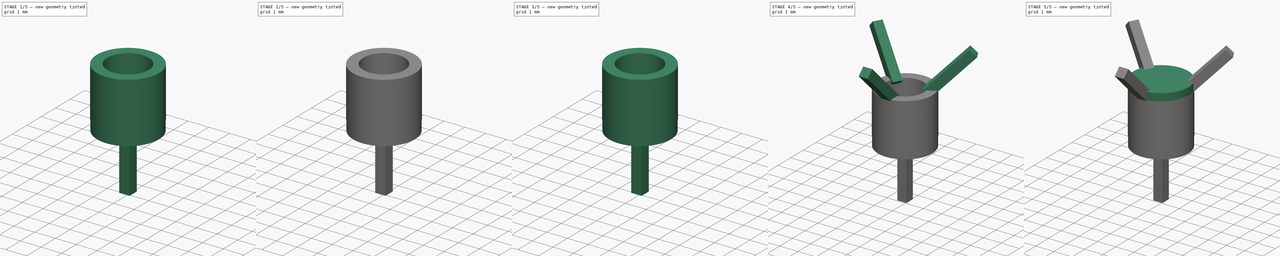
[diagram: build sequence overview — one tinted view per stage of 5, left to right]
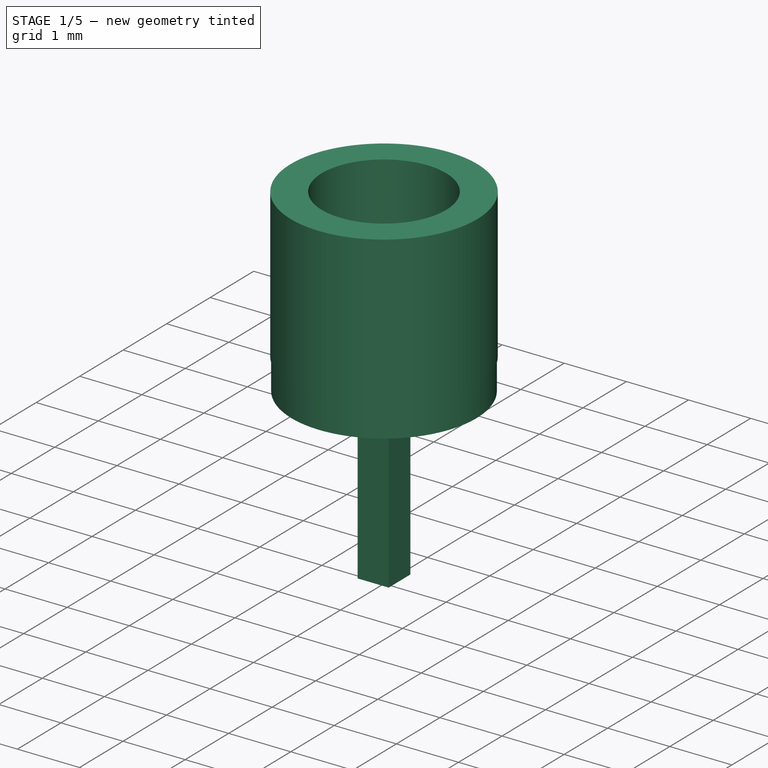
[diagram: stage 1 of 5 — iso view after this stage's code; geometry added in this stage tinted green]
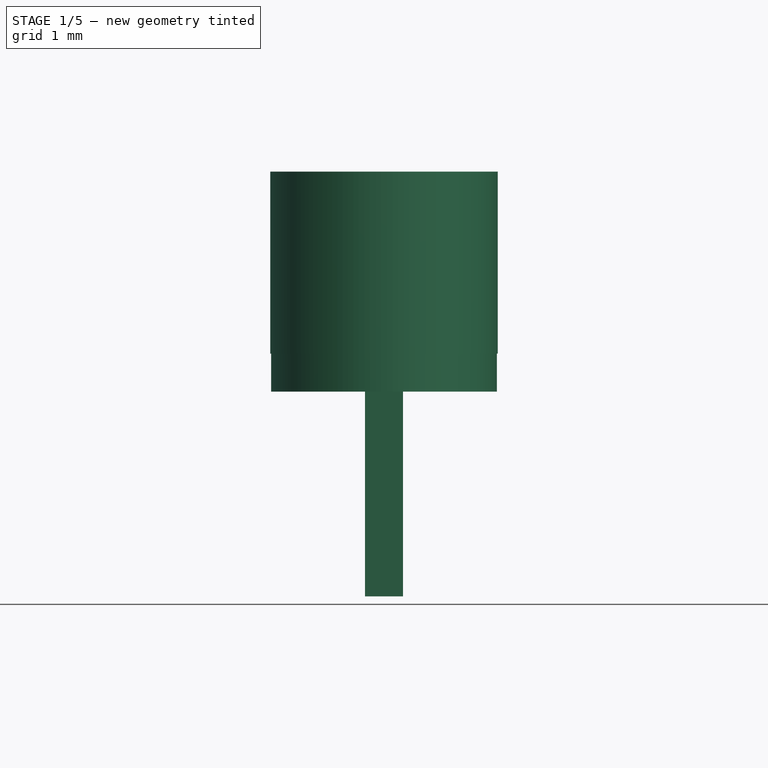
[diagram: stage 1 of 5 — front view after this stage's code; geometry added in this stage tinted green]
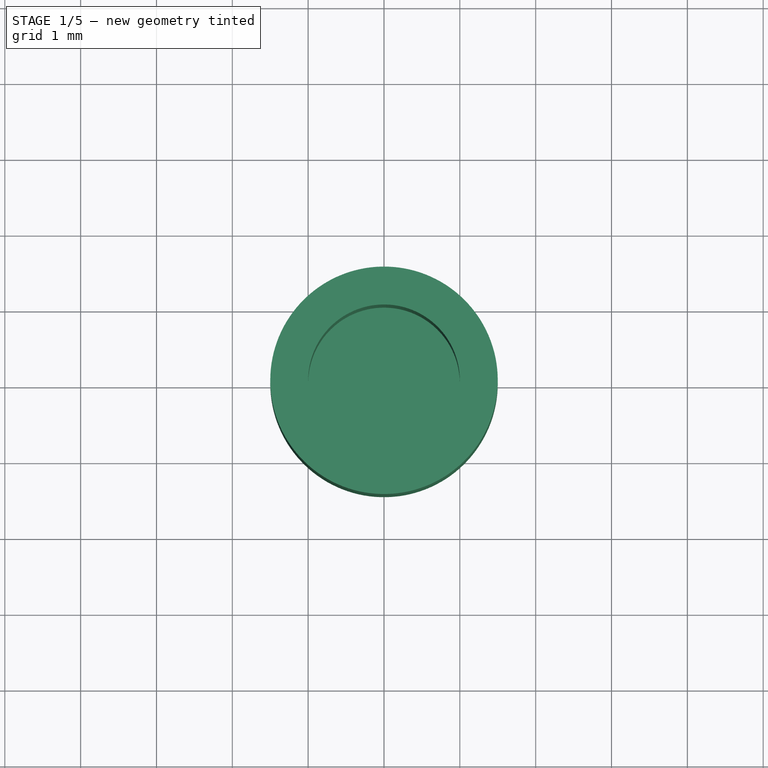
[diagram: stage 1 of 5 — top view after this stage's code; geometry added in this stage tinted green]
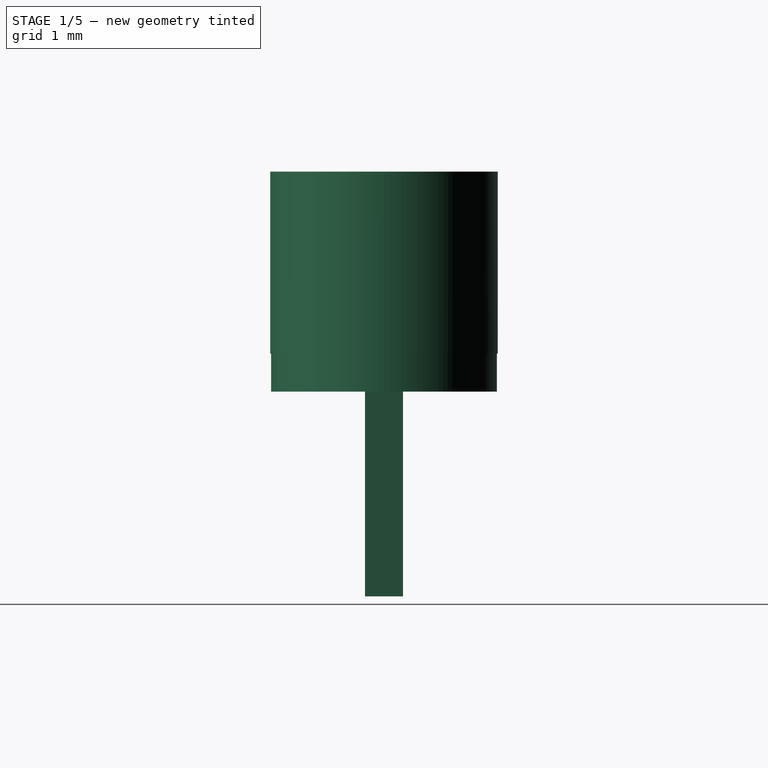
[diagram: stage 1 of 5 — right view after this stage's code; geometry added in this stage tinted green]
FCSTD DOCUMENT  (FreeCAD 0.19R24344 (Git))
Label: Magnet-Holder
License: Creative Commons Attribution-NonCommercial-ShareAlike
LicenseURL: http://creativecommons.org/licenses/by-nc-sa/4.0/
objects: Sketcher::SketchObject×16, PartDesign::Pad×12, Part::Part2DObjectPython×6, Part::RuledSurface×3, PartDesign::ShapeBinder×3, PartDesign::Pocket×3, PartDesign::Body×2
note: 60 computed .brp shape members not serialized (recipe doc carries the construction recipe); baked Part::Feature solids carry a one-line shape summary decoded from their .brp

FEATURE [Sketcher::SketchObject] Sketch007
  FullyConstrained = true
  MapMode = 5
  Placement = pos=(0,0,1.2) rot=(0,0,1;0rad)
  Support = -> [Pad002]
  sketch-geometry (11):
    g0: LineSegment StartX=0 StartY=0 StartZ=0 EndX=1.92836 EndY=2.29813 EndZ=0
    g1: LineSegment StartX=1.92836 StartY=2.29813 StartZ=0 EndX=-1.92836 EndY=2.29813 EndZ=0
    g2: LineSegment StartX=-1.92836 StartY=2.29813 StartZ=0 EndX=0 EndY=0 EndZ=0
    g3: LineSegment StartX=0 StartY=0 StartZ=0 EndX=3.4641 EndY=-2 EndZ=0
    g4: LineSegment StartX=0 StartY=0 StartZ=0 EndX=-3.4641 EndY=-2 EndZ=0
    g5: LineSegment StartX=0 StartY=0 StartZ=0 EndX=-2.95442 EndY=0.520945 EndZ=0
    g6: LineSegment StartX=-2.95442 StartY=0.520945 StartZ=0 EndX=-1.02606 EndY=-2.81908 EndZ=0
    g7: LineSegment StartX=-1.02606 StartY=-2.81908 StartZ=0 EndX=0 EndY=0 EndZ=0
    g8: LineSegment StartX=0 StartY=0 StartZ=0 EndX=1.02606 EndY=-2.81908 EndZ=0
    g9: LineSegment StartX=1.02606 StartY=-2.81908 StartZ=0 EndX=2.95442 EndY=0.520945 EndZ=0
    g10: LineSegment StartX=2.95442 StartY=0.520945 StartZ=0 EndX=0 EndY=0 EndZ=0
  constraints (30):
    c: Coincident(g0,g1)
    c: Coincident(g1,g2)
    c: Coincident(g2,g0)
    c: Equal(g0,g2)
    c: Coincident(g2,g-1)
    c: Distance(g0,g0) = 3
    c: Coincident(g3,g0)
    c: Coincident(g4,g0)
    c: Angle(g-2,g4) = 2.0944
    c: Angle(g3,g-2) = 2.0944
    c: Distance(g4,g0) = 4
    c: Distance(g0,g3) = 4
    c: Coincident(g5,g6)
    c: Coincident(g6,g7)
    c: Coincident(g7,g5)
    c: Equal(g5,g7)
    c: Coincident(g7,g0)
    c: Coincident(g8,g9)
    c: Coincident(g9,g10)
    c: Coincident(g10,g8)
    c: Equal(g8,g10)
    c: Coincident(g10,g0)
    c: Distance(g9,g0) = 3
    c: Distance(g5,g0) = 3
    c: Angle(g8,g10) = 1.39626
    c: Angle(g5,g7) = 1.39626
    c: Angle(g0,g2) = 1.39626
    c: Angle(g-2,g2) = 0.698132
    c: Angle(g5,g4) = 0.698132
    c: Angle(g3,g10) = 0.698132
FEATURE [Sketcher::SketchObject] Sketch009
  FullyConstrained = true
  MapMode = 5
  Support = -> [XY_Plane001]
  sketch-geometry (2):
    g0: Circle CenterX=0 CenterY=0 CenterZ=0 NormalX=0 NormalY=0 NormalZ=1 AngleXU=0 Radius=1
    g1: Circle CenterX=0 CenterY=0 CenterZ=0 NormalX=0 NormalY=0 NormalZ=1 AngleXU=0 Radius=1.5
  constraints (4):
    c: Coincident(g0,g-1)
    c: Coincident(g1,g0)
    c: Diameter(g0) = 2
    c: Diameter(g1) = 3
FEATURE [PartDesign::Pad] Pad008
  Direction = (1,1,1)
  Length = 2.4
  Length2 = 100
  Midplane = true
  Profile = -> Sketch009
  Type = 0
FEATURE [Sketcher::SketchObject] Sketch010
  ExternalGeometry = -> [Pad008]
  FullyConstrained = false
  MapMode = 5
  Placement = pos=(0,0,-1.2) rot=(1,0,0;3.14159rad)
  Support = -> [Pad008]
  sketch-geometry (1):
    g0: Circle CenterX=0 CenterY=0 CenterZ=0 NormalX=0 NormalY=0 NormalZ=1 AngleXU=0 Radius=1.48824
  constraints (1):
    c: Tangent(g0,g-3) = -1.5708
FEATURE [PartDesign::Pad] Pad009
  BaseFeature = -> Pad008
  Direction = (1,1,1)
  Length = 0.5
  Length2 = 100
  Profile = -> Sketch010
  Type = 0
FEATURE [Sketcher::SketchObject] Sketch008
  ExternalGeometry = -> [Pad009]
  FullyConstrained = true
  MapMode = 5
  Placement = pos=(0,0,0) rot=(0.57735,0.57735,0.57735;2.0944rad)
  Support = -> [YZ_Plane001]
  sketch-geometry (4):
    g0: LineSegment StartX=-0.25 StartY=-1.7 StartZ=0 EndX=0.25 EndY=-1.7 EndZ=0
    g1: LineSegment StartX=0.25 StartY=-1.7 StartZ=0 EndX=0.25 EndY=-4.4 EndZ=0
    g2: LineSegment StartX=0.25 StartY=-4.4 StartZ=0 EndX=-0.25 EndY=-4.4 EndZ=0
    g3: LineSegment StartX=-0.25 StartY=-4.4 StartZ=0 EndX=-0.25 EndY=-1.7 EndZ=0
  constraints (11):
    c: Coincident(g0,g1)
    c: Coincident(g1,g2)
    c: Coincident(g2,g3)
    c: Coincident(g3,g0)
    c: Horizontal(g0)
    c: Vertical(g1)
    c: Vertical(g3)
    c: PointOnObject(g0,g-3)
    c: DistanceY(g2,g-1) = 4.4
    c: Distance(g2) = 0.5
    c: Symmetric(g1,g2,g-2)
FEATURE [PartDesign::Pad] Pad007
  BaseFeature = -> Pad009
  Direction = (1,1,1)
  Length = 0.5
  Length2 = 100
  Midplane = true
  Profile = -> Sketch008
  Type = 0
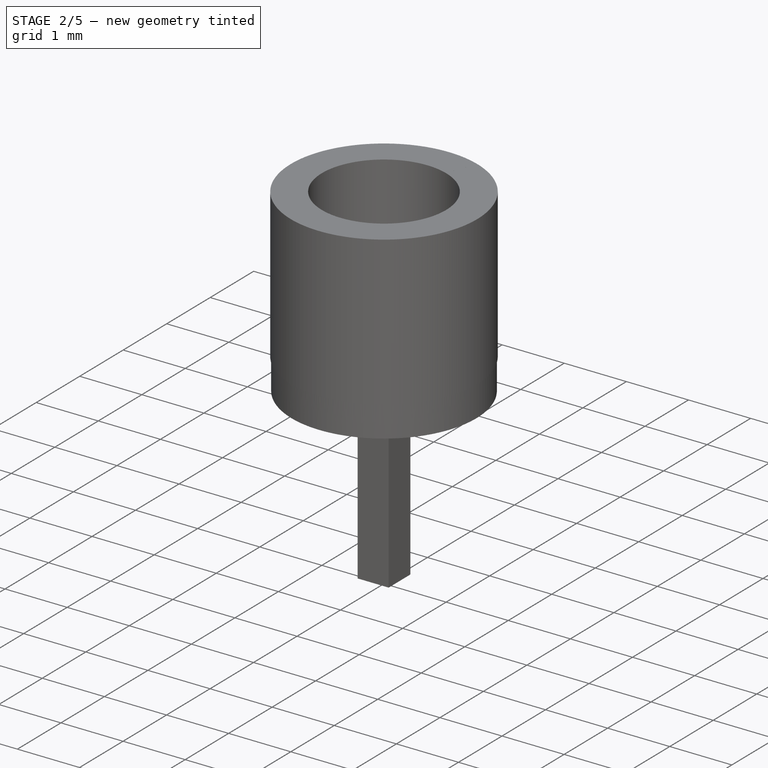
[diagram: stage 2 of 5 — iso view after this stage's code; geometry added in this stage tinted green]
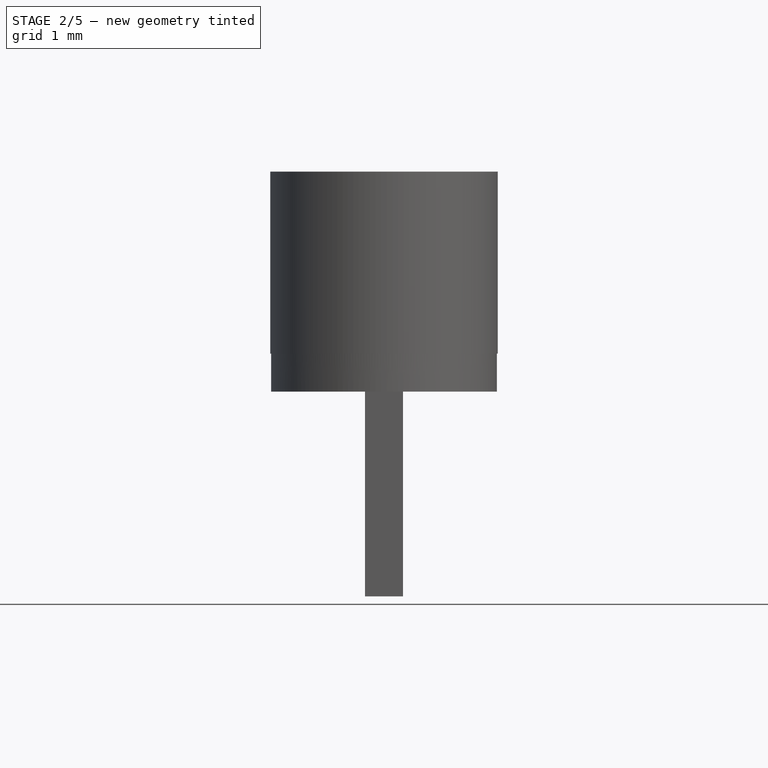
[diagram: stage 2 of 5 — front view after this stage's code; geometry added in this stage tinted green]
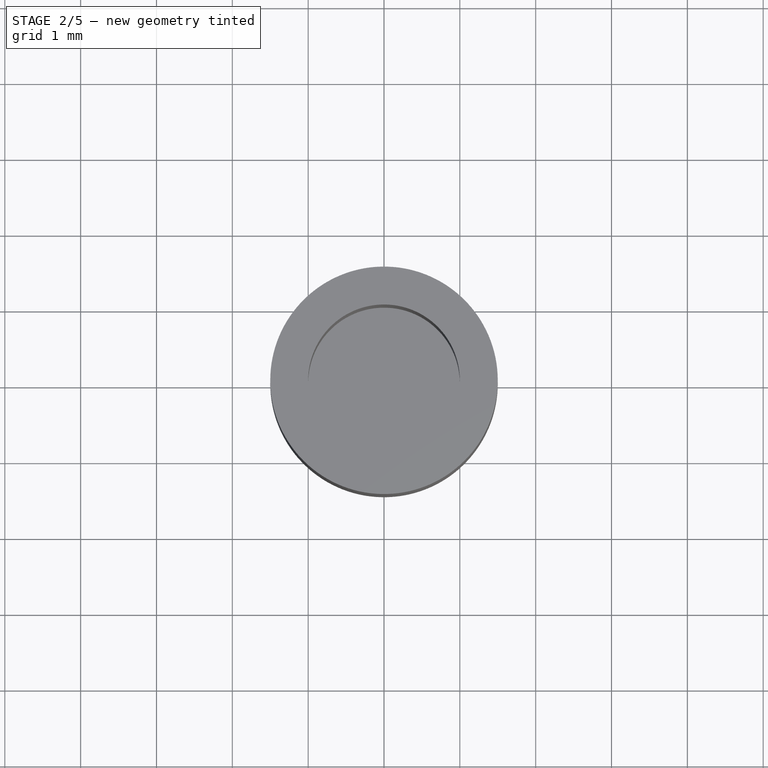
[diagram: stage 2 of 5 — top view after this stage's code; geometry added in this stage tinted green]
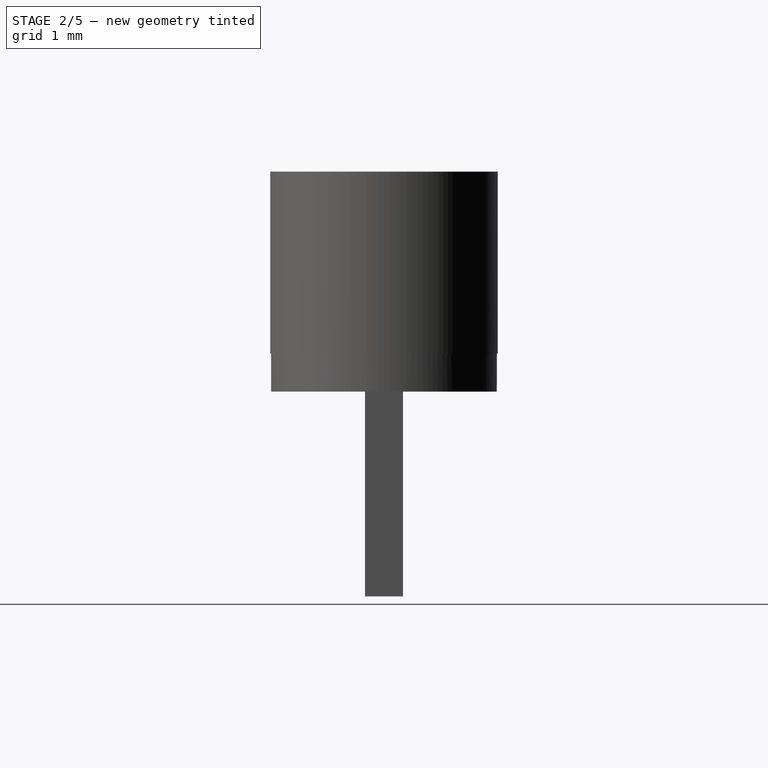
[diagram: stage 2 of 5 — right view after this stage's code; geometry added in this stage tinted green]
FEATURE [PartDesign::Body] Body  label="Top"
  Group = -> [Sketch,Pad,Sketch001,Pad001,Sketch002,Pad002,CopyRuled_Surface,Sketch003,Pad003,CopyRuled_Surface001,Sketch004,Pad004,CopyRuled_Surface002,Sketch005,Pad005,Sketch006,Pad006,Sketch007,Pocket,Sketch016,Pocket001]
  Origin = -> Origin
  Tip = -> Pocket001
FEATURE [Sketcher::SketchObject] Sketch019
  FullyConstrained = true
  MapMode = 5
  Support = -> [XY_Plane003]
  sketch-geometry (2):
    g0: Circle CenterX=0 CenterY=0 CenterZ=0 NormalX=0 NormalY=0 NormalZ=1 AngleXU=0 Radius=1
    g1: Circle CenterX=0 CenterY=0 CenterZ=0 NormalX=0 NormalY=0 NormalZ=1 AngleXU=0 Radius=1.5
  constraints (4):
    c: Coincident(g0,g-1)
    c: Coincident(g1,g0)
    c: Diameter(g0) = 2
    c: Diameter(g1) = 3
FEATURE [PartDesign::Pad] Pad015
  Direction = (1,1,1)
  Length = 2.4
  Length2 = 100
  Midplane = true
  Profile = -> Sketch019
  Type = 0
FEATURE [Sketcher::SketchObject] Sketch018
  ExternalGeometry = -> [Pad015]
  FullyConstrained = false
  MapMode = 5
  Placement = pos=(0,0,-1.2) rot=(1,0,0;3.14159rad)
  Support = -> [Pad015]
  sketch-geometry (1):
    g0: Circle CenterX=0 CenterY=0 CenterZ=0 NormalX=0 NormalY=0 NormalZ=1 AngleXU=0 Radius=1.48824
  constraints (1):
    c: Tangent(g0,g-3) = -1.5708
FEATURE [PartDesign::Pad] Pad014
  BaseFeature = -> Pad015
  Direction = (1,1,1)
  Length = 0.5
  Length2 = 100
  Profile = -> Sketch018
  Type = 0
FEATURE [Sketcher::SketchObject] Sketch017
  FullyConstrained = true
  MapMode = 5
  Placement = pos=(0,0,-1.2) rot=(0,0,1;0rad)
  Support = -> [Pad014]
  sketch-geometry (15):
    g0: LineSegment StartX=0 StartY=0 StartZ=0 EndX=5 EndY=-2e-16 EndZ=0
    g1: LineSegment StartX=5 StartY=-2e-16 StartZ=0 EndX=2.5 EndY=4.33013 EndZ=0
    g2: LineSegment StartX=2.5 StartY=4.33013 StartZ=0 EndX=0 EndY=0 EndZ=0
    g3: Circle CenterX=2.5 CenterY=1.44338 CenterZ=0 NormalX=0 NormalY=0 NormalZ=1 AngleXU=0 Radius=2.88675
    g4: LineSegment StartX=0 StartY=0 StartZ=0 EndX=5e-16 EndY=-4 EndZ=0
    g5: LineSegment StartX=0 StartY=0 StartZ=0 EndX=-3.4641 EndY=2 EndZ=0
    g6: LineSegment StartX=0 StartY=0 StartZ=0 EndX=-2.5 EndY=4.33013 EndZ=0
    g7: LineSegment StartX=-2.5 StartY=4.33013 StartZ=0 EndX=-5 EndY=1.8e-15 EndZ=0
    g8: LineSegment StartX=-5 StartY=1.8e-15 StartZ=0 EndX=0 EndY=0 EndZ=0
    g9: Circle CenterX=-2.5 CenterY=1.44338 CenterZ=0 NormalX=0 NormalY=0 NormalZ=1 AngleXU=0 Radius=2.88675
    g10: LineSegment StartX=0 StartY=0 StartZ=0 EndX=-2.25 EndY=-3.89711 EndZ=0
    g11: LineSegment StartX=-2.25 StartY=-3.89711 StartZ=0 EndX=2.25 EndY=-3.89711 EndZ=0
    g12: LineSegment StartX=2.25 StartY=-3.89711 StartZ=0 EndX=0 EndY=0 EndZ=0
    g13: Circle CenterX=3e-16 CenterY=-2.59808 CenterZ=0 NormalX=0 NormalY=0 NormalZ=1 AngleXU=0 Radius=2.59808
    g14: LineSegment StartX=0 StartY=0 StartZ=0 EndX=3.4641 EndY=2 EndZ=0
  constraints (42):
    c: Coincident(g0,g1)
    c: Coincident(g1,g2)
    c: Coincident(g2,g0)
    c: Equal(g0,g1)
    c: Equal(g0,g2)
    c: PointOnObject(g0,g3)
    c: PointOnObject(g1,g3)
    c: PointOnObject(g2,g3)
    c: Coincident(g2,g-1)
    c: Distance(g0,g0) = 5
    c: Coincident(g4,g0)
    c: Coincident(g5,g0)
    c: Angle(g-2,g5) = 1.0472
    c: Angle(g4,g-2) = 3.14159
    c: Distance(g5,g0) = 4
    c: Distance(g0,g4) = 4
    c: Coincident(g6,g7)
    c: Coincident(g7,g8)
    c: Coincident(g8,g6)
    c: Equal(g6,g7)
    c: Equal(g6,g8)
    c: PointOnObject(g6,g9)
    c: PointOnObject(g7,g9)
    c: PointOnObject(g8,g9)
    c: PointOnObject(g9,g5)
    c: Coincident(g8,g0)
    c: Coincident(g10,g11)
    c: Coincident(g11,g12)
    c: Coincident(g12,g10)
    c: Equal(g10,g11)
    c: Equal(g10,g12)
    c: PointOnObject(g10,g13)
    c: PointOnObject(g11,g13)
    c: PointOnObject(g12,g13)
    c: PointOnObject(g13,g4)
    c: Coincident(g12,g0)
    c: Distance(g11,g0) = 4.5
    c: Distance(g6,g0) = 5
    c: Coincident(g14,g0)
    c: Distance(g14,g0) = 4
    c: PointOnObject(g3,g14)
    c: Angle(g14,g-2) = 1.0472
FEATURE [PartDesign::Pocket] Pocket002
  BaseFeature = -> Pad007
  Length = 5
  Length2 = 100
  Profile = -> Sketch015
  Reversed = true
  Type = 0
FEATURE [PartDesign::Body] Body001  label="Bottom"
  Group = -> [Sketch009,Pad008,Sketch010,Pad009,Sketch008,Pad007,Sketch015,Pocket002]
  Origin = -> Origin001
  Placement = pos=(0,6,0) rot=(0,0,1;0rad)
  Tip = -> Pocket002
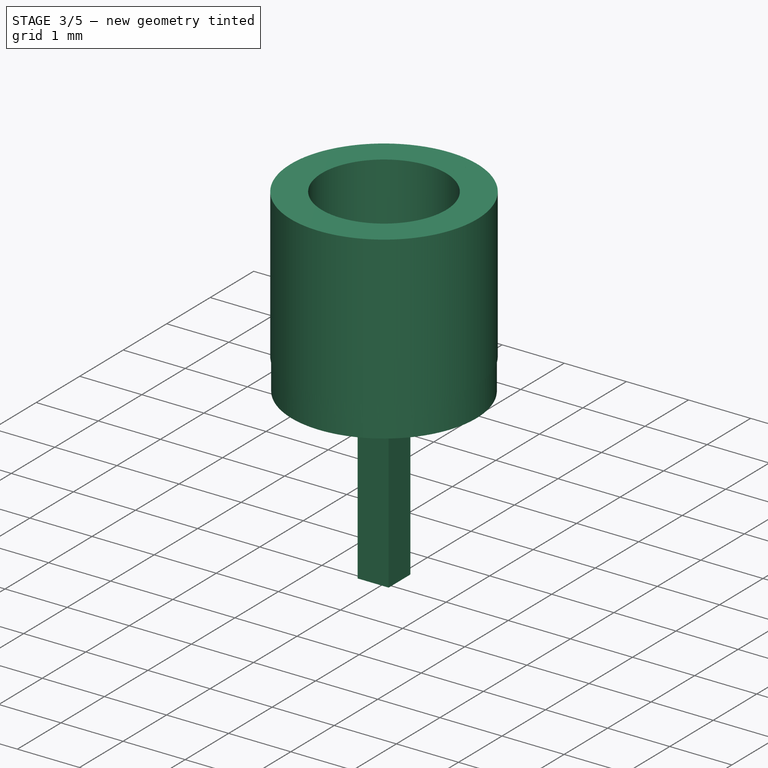
[diagram: stage 3 of 5 — iso view after this stage's code; geometry added in this stage tinted green]
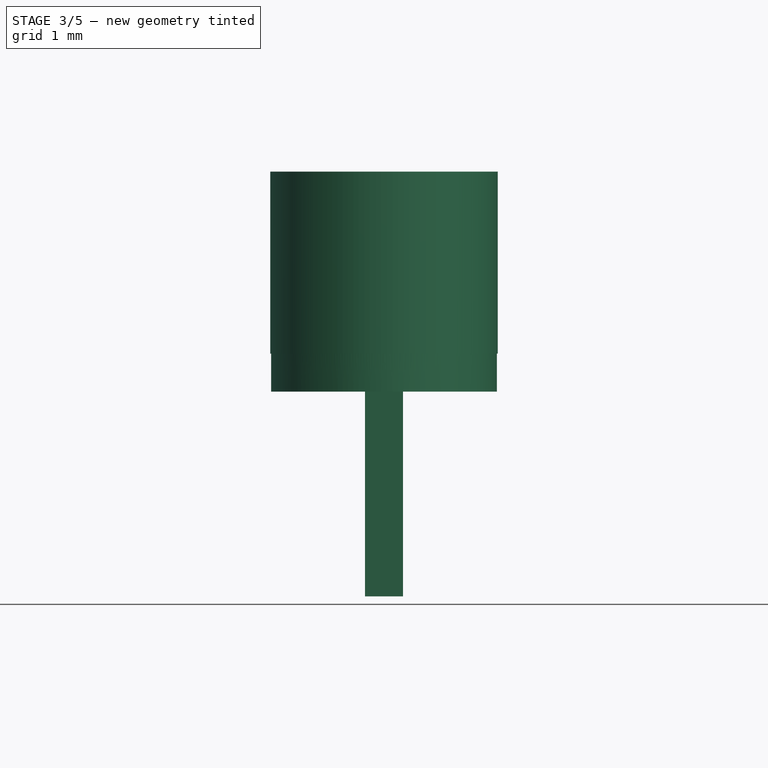
[diagram: stage 3 of 5 — front view after this stage's code; geometry added in this stage tinted green]
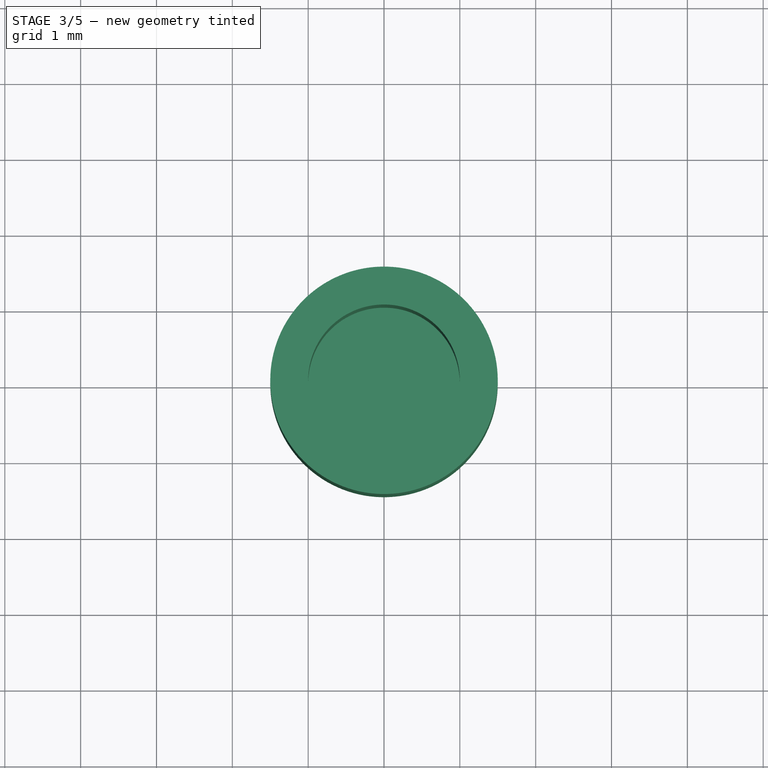
[diagram: stage 3 of 5 — top view after this stage's code; geometry added in this stage tinted green]
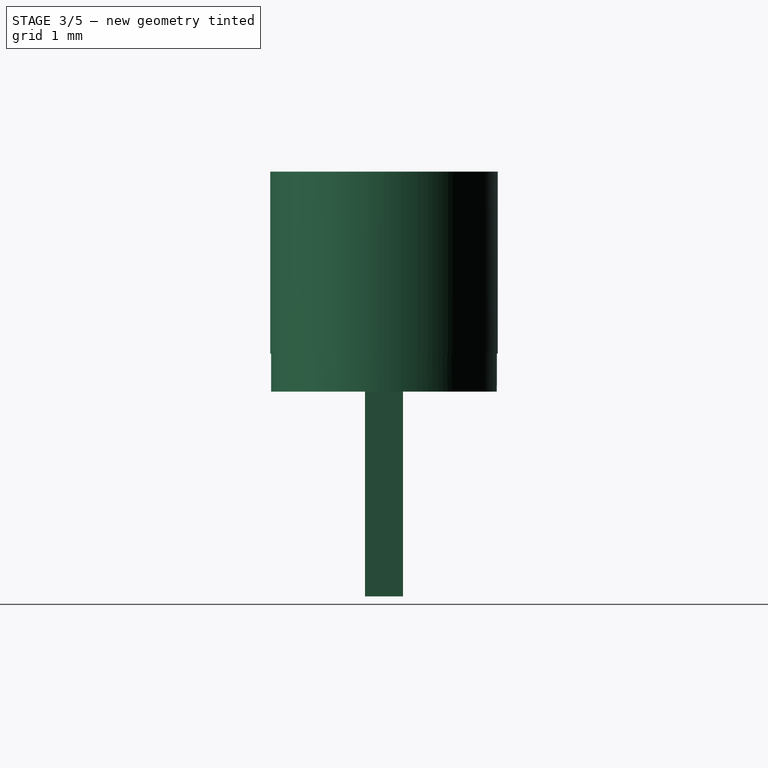
[diagram: stage 3 of 5 — right view after this stage's code; geometry added in this stage tinted green]
FEATURE [Sketcher::SketchObject] Sketch
  FullyConstrained = true
  MapMode = 5
  Support = -> [XY_Plane]
  sketch-geometry (2):
    g0: Circle CenterX=0 CenterY=0 CenterZ=0 NormalX=0 NormalY=0 NormalZ=1 AngleXU=0 Radius=1
    g1: Circle CenterX=0 CenterY=0 CenterZ=0 NormalX=0 NormalY=0 NormalZ=1 AngleXU=0 Radius=1.5
  constraints (4):
    c: Coincident(g0,g-1)
    c: Coincident(g1,g0)
    c: Diameter(g0) = 2
    c: Diameter(g1) = 3
FEATURE [PartDesign::Pad] Pad
  Direction = (1,1,1)
  Length = 2.4
  Length2 = 100
  Midplane = true
  Profile = -> Sketch
  Type = 0
FEATURE [Sketcher::SketchObject] Sketch001
  ExternalGeometry = -> [Pad]
  FullyConstrained = false
  MapMode = 5
  Placement = pos=(0,0,-1.2) rot=(1,0,0;3.14159rad)
  Support = -> [Pad]
  sketch-geometry (1):
    g0: Circle CenterX=0 CenterY=0 CenterZ=0 NormalX=0 NormalY=0 NormalZ=1 AngleXU=0 Radius=1.48824
  constraints (1):
    c: Tangent(g0,g-3) = -1.5708
FEATURE [PartDesign::Pad] Pad001
  BaseFeature = -> Pad
  Direction = (1,1,1)
  Length = 0.5
  Length2 = 100
  Profile = -> Sketch001
  Type = 0
FEATURE [Sketcher::SketchObject] Sketch002
  ExternalGeometry = -> [Pad001]
  FullyConstrained = true
  MapMode = 5
  Placement = pos=(0,0,0) rot=(0.57735,0.57735,0.57735;2.0944rad)
  Support = -> [YZ_Plane]
  sketch-geometry (4):
    g0: LineSegment StartX=-0.25 StartY=-1.7 StartZ=0 EndX=0.25 EndY=-1.7 EndZ=0
    g1: LineSegment StartX=0.25 StartY=-1.7 StartZ=0 EndX=0.25 EndY=-4.4 EndZ=0
    g2: LineSegment StartX=0.25 StartY=-4.4 StartZ=0 EndX=-0.25 EndY=-4.4 EndZ=0
    g3: LineSegment StartX=-0.25 StartY=-4.4 StartZ=0 EndX=-0.25 EndY=-1.7 EndZ=0
  constraints (11):
    c: Coincident(g0,g1)
    c: Coincident(g1,g2)
    c: Coincident(g2,g3)
    c: Coincident(g3,g0)
    c: Horizontal(g0)
    c: Vertical(g1)
    c: Vertical(g3)
    c: PointOnObject(g0,g-3)
    c: DistanceY(g2,g-1) = 4.4
    c: Distance(g2) = 0.5
    c: Symmetric(g1,g2,g-2)
FEATURE [PartDesign::Pad] Pad002
  BaseFeature = -> Pad001
  Direction = (1,1,1)
  Length = 0.5
  Length2 = 100
  Midplane = true
  Profile = -> Sketch002
  Type = 0
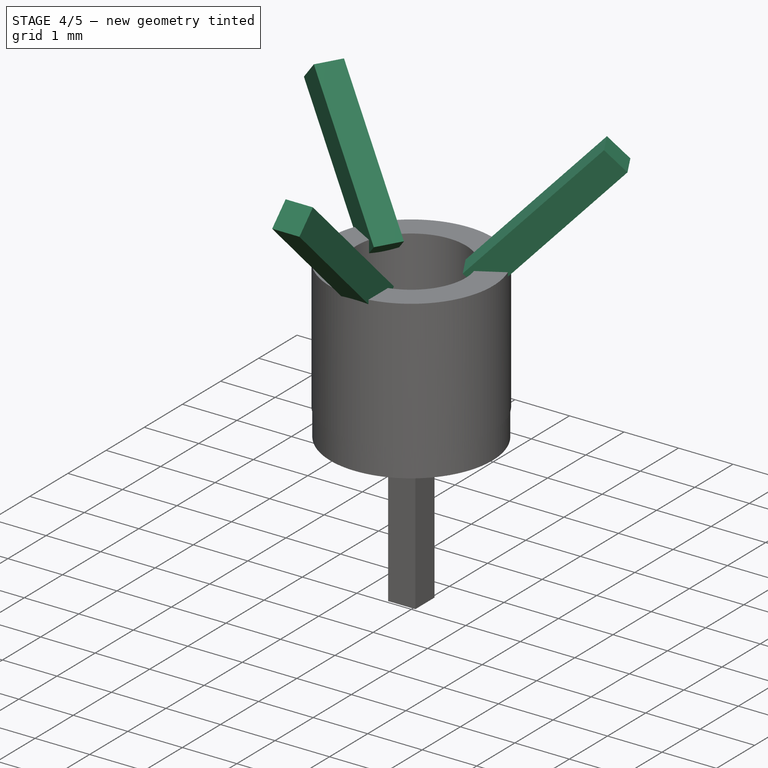
[diagram: stage 4 of 5 — iso view after this stage's code; geometry added in this stage tinted green]
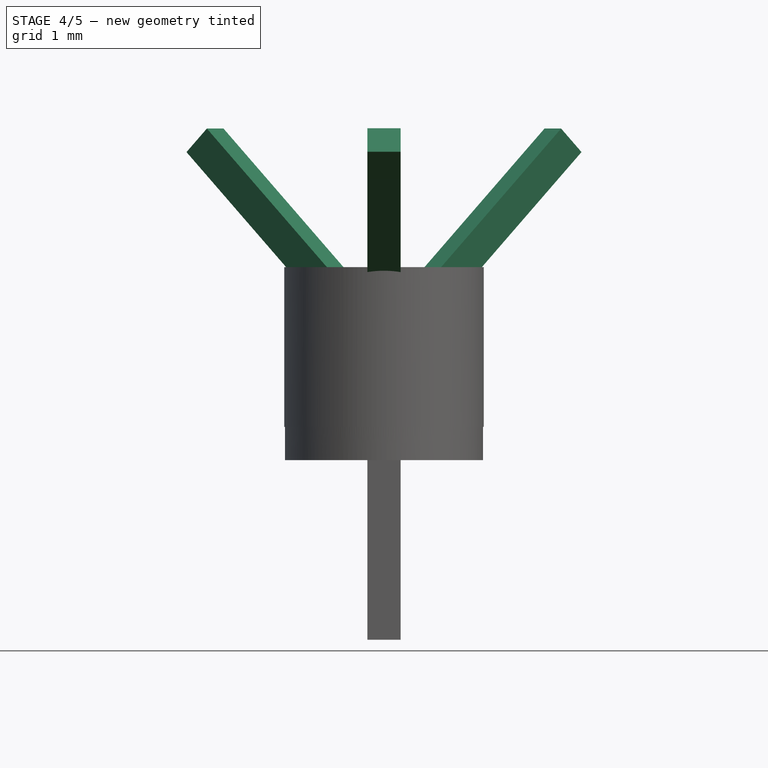
[diagram: stage 4 of 5 — front view after this stage's code; geometry added in this stage tinted green]
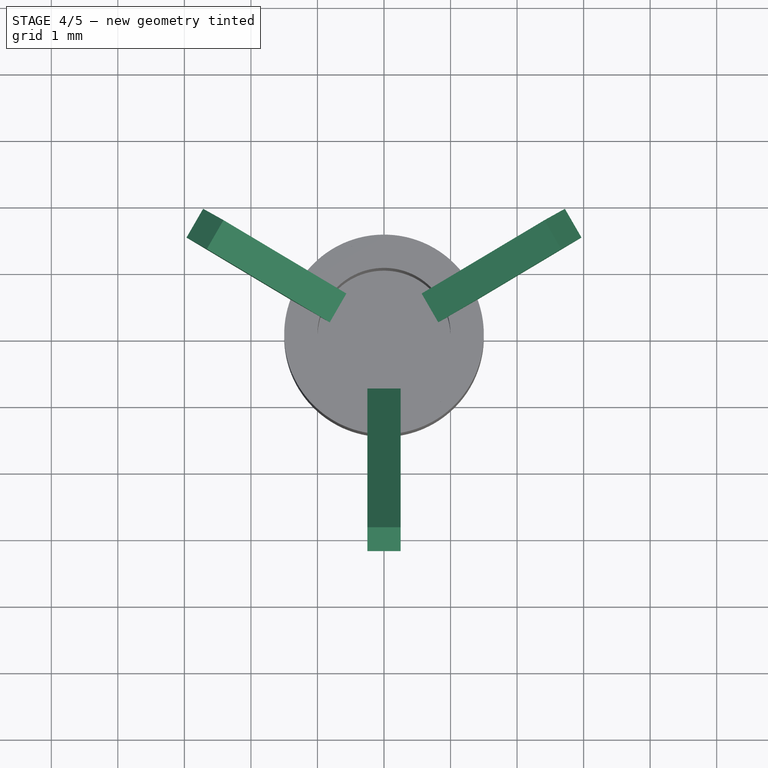
[diagram: stage 4 of 5 — top view after this stage's code; geometry added in this stage tinted green]
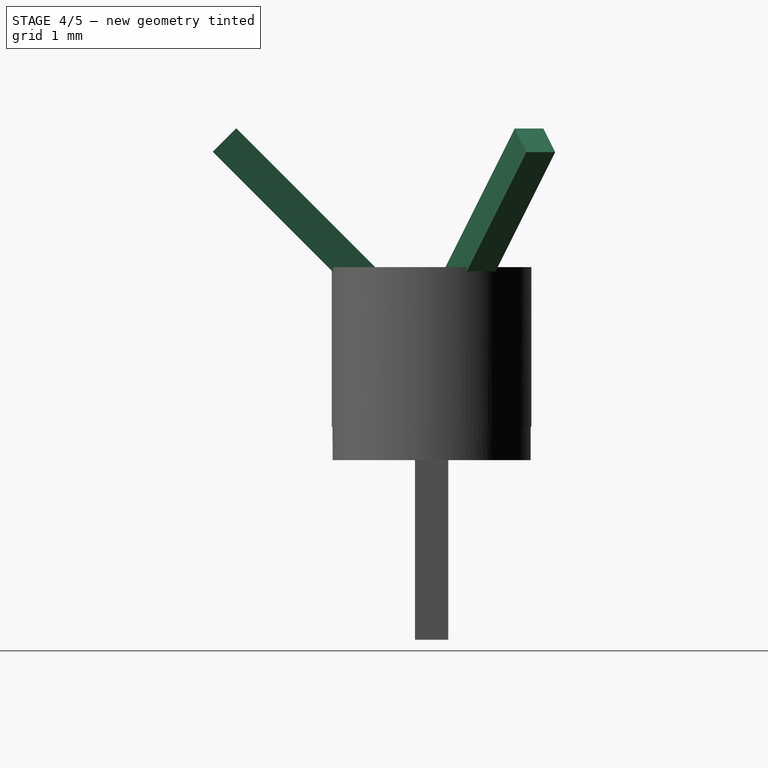
[diagram: stage 4 of 5 — right view after this stage's code; geometry added in this stage tinted green]
FEATURE [Part::Part2DObjectPython] Line  # Draft 2D object (typed FeaturePython)
  Area = 0
  ChamferSize = 0
  Closed = false
  End = (2,2,-2)
  FilletRadius = 0
  Length = 5.65685
  MakeFace = false
  Placement = pos=(0,-2,2) rot=(0.57735,0.57735,0.57735;2.0944rad)
  Points = (2) [(0,0,2),(4,-4,2)]
  Start = (2,-2,2)
  Subdivisions = 0
FEATURE [Part::Part2DObjectPython] Line001  # Draft 2D object (typed FeaturePython)
  Area = 0
  ChamferSize = 0
  Closed = false
  End = (-2,2,-2)
  FilletRadius = 0
  Length = 5.65685
  MakeFace = false
  Placement = pos=(0,-2,2) rot=(0.57735,0.57735,0.57735;2.0944rad)
  Points = (2) [(0,0,-2),(4,-4,-2)]
  Start = (-2,-2,2)
  Subdivisions = 0
FEATURE [Part::RuledSurface] Ruled_Surface
  Curve1 = -> Line
  Curve2 = -> Line001
  Orientation = 0
FEATURE [PartDesign::ShapeBinder] CopyRuled_Surface
  TraceSupport = false
FEATURE [Sketcher::SketchObject] Sketch003
  FullyConstrained = true
  MapMode = 5
  Placement = pos=(0,0,0) rot=(-1,0,0;0.785398rad)
  Support = -> [CopyRuled_Surface]
  sketch-geometry (4):
    g0: LineSegment StartX=-0.25 StartY=-1.4 StartZ=0 EndX=0.25 EndY=-1.4 EndZ=0
    g1: LineSegment StartX=0.25 StartY=-1.4 StartZ=0 EndX=0.25 EndY=-4.4 EndZ=0
    g2: LineSegment StartX=0.25 StartY=-4.4 StartZ=0 EndX=-0.25 EndY=-4.4 EndZ=0
    g3: LineSegment StartX=-0.25 StartY=-4.4 StartZ=0 EndX=-0.25 EndY=-1.4 EndZ=0
  constraints (11):
    c: Coincident(g0,g1)
    c: Coincident(g1,g2)
    c: Coincident(g2,g3)
    c: Coincident(g3,g0)
    c: Horizontal(g0)
    c: Vertical(g1)
    c: Vertical(g3)
    c: Distance(g2) = 0.5
    c: Symmetric(g2,g1,g-2)
    c: DistanceY(g1,g-1) = 4.4
    c: DistanceY(g0,g-1) = 1.4
FEATURE [PartDesign::Pad] Pad003
  BaseFeature = -> Pad002
  Direction = (1,1,1)
  Length = 0.5
  Length2 = 100
  Midplane = true
  Profile = -> Sketch003
  Type = 0
FEATURE [Part::Part2DObjectPython] Line006  # Draft 2D object (typed FeaturePython)
  Area = 0
  ChamferSize = 0
  Closed = false
  End = (-2.73205,-0.732051,2)
  FilletRadius = 0
  Length = 5.63027
  MakeFace = false
  Placement = pos=(0.715774,-2.72265,-1.98121) rot=(0,0,1;0rad)
  Points = (2) [(0,0,0),(-3.44782,1.9906,3.98121)]
  Start = (0.715774,-2.72265,-1.98121)
  Subdivisions = 0
FEATURE [Part::Part2DObjectPython] Line008  # Draft 2D object (typed FeaturePython)
  Area = 0
  ChamferSize = 0
  Closed = false
  End = (-0.732051,2.73205,2)
  FilletRadius = 0
  Length = 5.64194
  MakeFace = false
  Placement = pos=(2.72292,0.737322,-1.98946) rot=(0,0,1;0rad)
  Points = (2) [(0,0,0),(-3.45497,1.99473,3.98946)]
  Start = (2.72292,0.737322,-1.98946)
  Subdivisions = 0
FEATURE [Part::Part2DObjectPython] Line009  # Draft 2D object (typed FeaturePython)
  Area = 0
  ChamferSize = 0
  Closed = false
  End = (2.72183,-0.723544,1.9954)
  FilletRadius = 0
  Length = 5.65036
  MakeFace = false
  Placement = pos=(-0.732051,-2.73205,-2) rot=(0,0,1;0rad)
  Points = (2) [(0,0,0),(3.45388,2.00851,3.9954)]
  Start = (-0.732051,-2.73205,-2)
  Subdivisions = 0
FEATURE [Part::Part2DObjectPython] Line010  # Draft 2D object (typed FeaturePython)
  Area = 0
  ChamferSize = 0
  Closed = false
  End = (0.732051,2.73205,2)
  FilletRadius = 0
  Length = 5.65685
  MakeFace = false
  Placement = pos=(-2.73205,0.732051,-2) rot=(0,0,1;0rad)
  Points = (2) [(0,0,0),(3.4641,2,4)]
  Start = (-2.73205,0.732051,-2)
  Subdivisions = 0
FEATURE [Part::RuledSurface] Ruled_Surface001
  Curve1 = -> Line010
  Curve2 = -> Line009
  Orientation = 0
FEATURE [Part::RuledSurface] Ruled_Surface002
  Curve1 = -> Line008
  Curve2 = -> Line006
  Orientation = 0
FEATURE [PartDesign::ShapeBinder] CopyRuled_Surface001
  TraceSupport = false
FEATURE [Sketcher::SketchObject] Sketch004
  ExternalGeometry = -> [CopyRuled_Surface001]
  FullyConstrained = true
  MapMode = 5
  Placement = pos=(-3.87613e-09,-2.23788e-09,4.47576e-09) rot=(0.943446,-0.076169,0.322657;3.57987rad)
  Support = -> [CopyRuled_Surface001]
  sketch-geometry (4):
    g0: LineSegment StartX=1.22512 StartY=-0.677557 StartZ=0 EndX=3.56083 EndY=-2.58466 EndZ=0
    g1: LineSegment StartX=3.56083 StartY=-2.58466 StartZ=0 EndX=3.24461 EndY=-2.97196 EndZ=0
    g2: LineSegment StartX=3.24461 StartY=-2.97196 StartZ=0 EndX=0.908891 EndY=-1.06486 EndZ=0
    g3: LineSegment StartX=0.908891 StartY=-1.06486 StartZ=0 EndX=1.22512 EndY=-0.677557 EndZ=0
  constraints (12):
    c: Coincident(g0,g1)
    c: Coincident(g1,g2)
    c: Coincident(g2,g3)
    c: Coincident(g3,g0)
    c: Distance(g-1,g0) = 1.4
    c: Distance(g3) = 0.5
    c: Distance(g-1,g2) = 1.4
    c: Distance(g-1,g1) = 4.4
    c: Parallel(g1,g3)
    c: Parallel(g0,g2)
    c: Perpendicular(g0,g3)
    c: Parallel(g-3,g2)
FEATURE [PartDesign::Pad] Pad004
  BaseFeature = -> Pad003
  Direction = (1,1,1)
  Length = 0.5
  Length2 = 100
  Midplane = true
  Profile = -> Sketch004
  Type = 0
FEATURE [PartDesign::ShapeBinder] CopyRuled_Surface002
  TraceSupport = false
FEATURE [Sketcher::SketchObject] Sketch005
  ExternalGeometry = -> [CopyRuled_Surface002]
  FullyConstrained = true
  MapMode = 5
  Placement = pos=(-1.77651e-08,1.02567e-08,-2.05134e-08) rot=(0.557644,0.807875,0.190713;0.800913rad)
  Support = -> [CopyRuled_Surface002]
  sketch-geometry (4):
    g0: LineSegment StartX=-1.22512 StartY=0.677557 StartZ=0 EndX=-3.56083 EndY=2.58466 EndZ=0
    g1: LineSegment StartX=-3.56083 StartY=2.58466 StartZ=0 EndX=-3.24461 EndY=2.97196 EndZ=0
    g2: LineSegment StartX=-3.24461 StartY=2.97196 StartZ=0 EndX=-0.908891 EndY=1.06486 EndZ=0
    g3: LineSegment StartX=-0.908891 StartY=1.06486 StartZ=0 EndX=-1.22512 EndY=0.677557 EndZ=0
  constraints (12):
    c: Coincident(g0,g1)
    c: Coincident(g1,g2)
    c: Coincident(g2,g3)
    c: Coincident(g3,g0)
    c: Distance(g-1,g0) = 1.4
    c: Distance(g3) = 0.5
    c: Distance(g-1,g2) = 1.4
    c: Distance(g1) = 0.5
    c: Parallel(g1,g3)
    c: Distance(g-1,g0) = 4.4
    c: Perpendicular(g0,g3)
    c: Parallel(g-3,g0)
FEATURE [PartDesign::Pad] Pad005
  BaseFeature = -> Pad004
  Direction = (1,1,1)
  Length = 0.5
  Length2 = 100
  Midplane = true
  Profile = -> Sketch005
  Type = 0
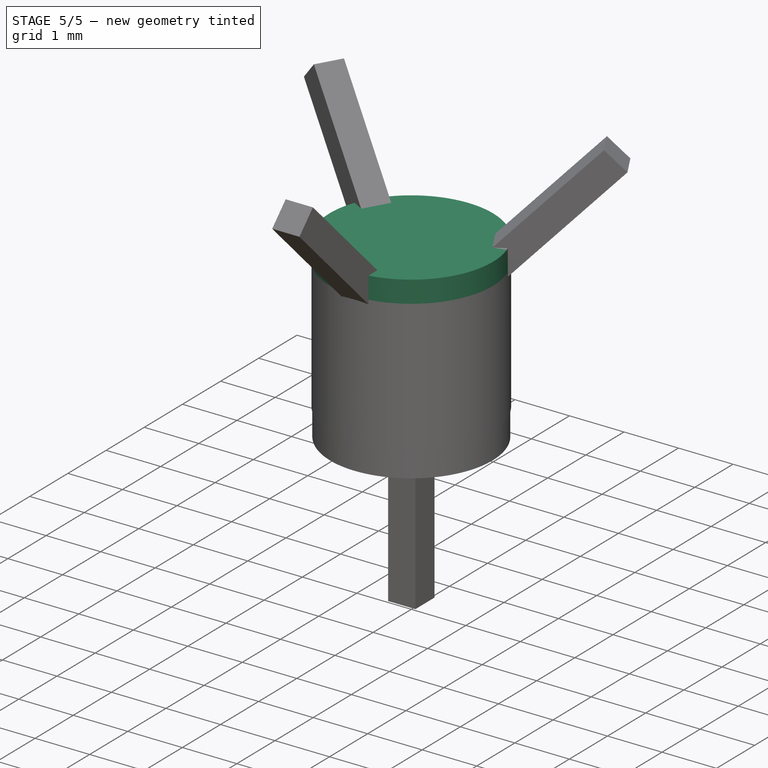
[diagram: stage 5 of 5 — iso view after this stage's code; geometry added in this stage tinted green]
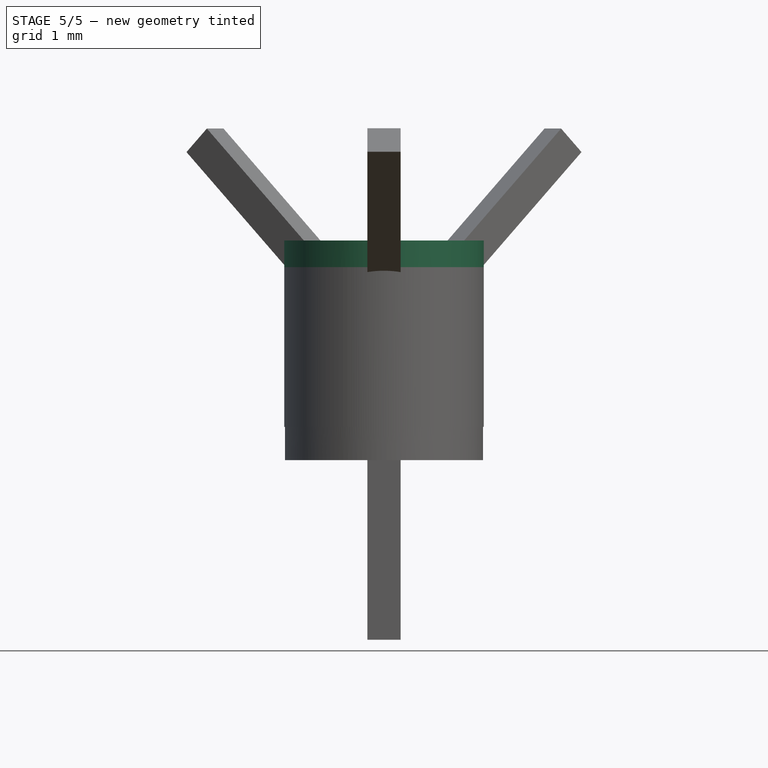
[diagram: stage 5 of 5 — front view after this stage's code; geometry added in this stage tinted green]
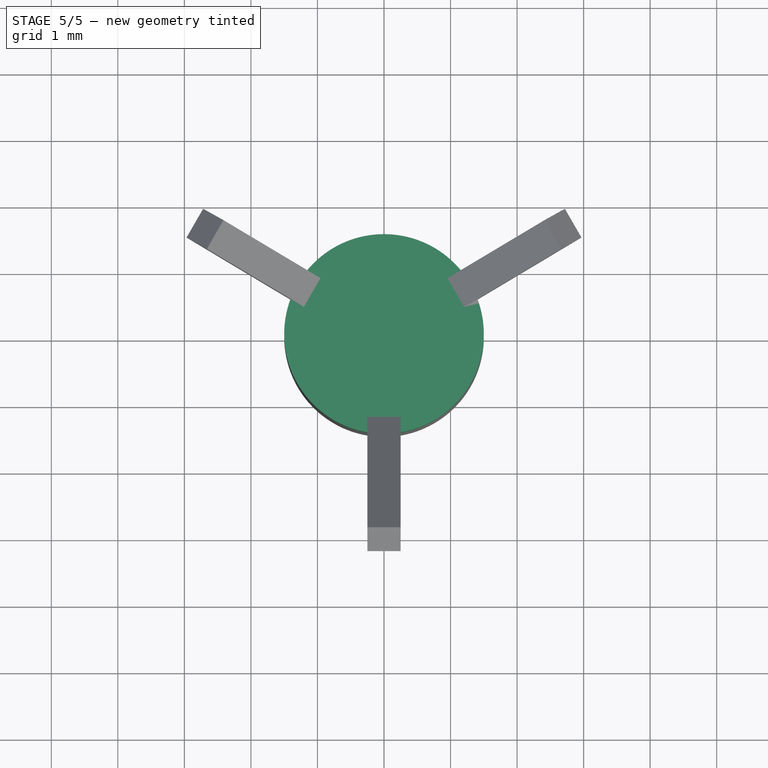
[diagram: stage 5 of 5 — top view after this stage's code; geometry added in this stage tinted green]
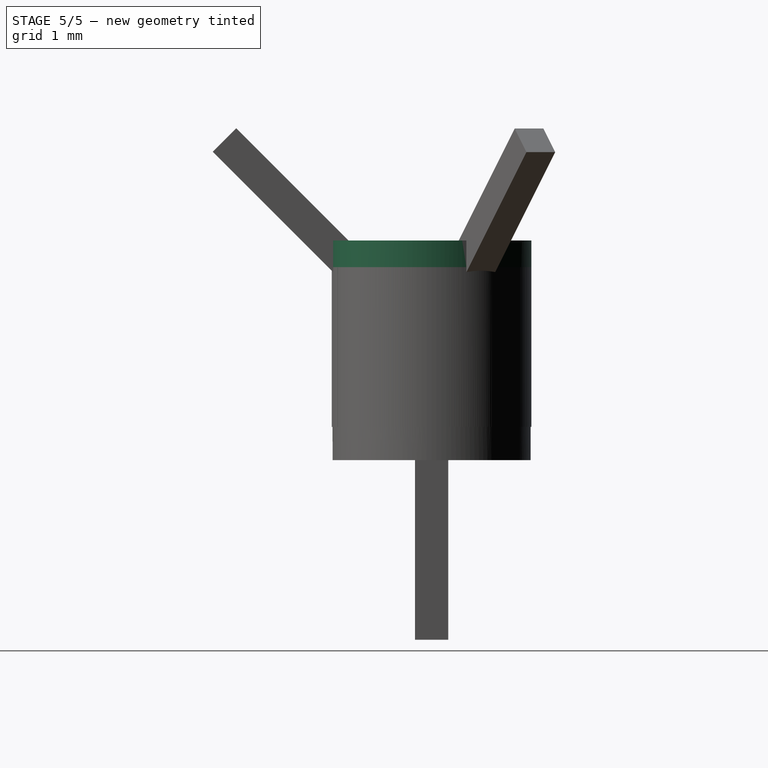
[diagram: stage 5 of 5 — right view after this stage's code; geometry added in this stage tinted green]
FEATURE [Sketcher::SketchObject] Sketch006
  FullyConstrained = true
  MapMode = 5
  Placement = pos=(0,0,1.2) rot=(0,0,1;0rad)
  Support = -> [Pad005]
  sketch-geometry (1):
    g0: Circle CenterX=0 CenterY=0 CenterZ=0 NormalX=0 NormalY=0 NormalZ=1 AngleXU=0 Radius=1.5
  constraints (2):
    c: Coincident(g0,g-1)
    c: Radius(g0) = 1.5
FEATURE [PartDesign::Pad] Pad006
  BaseFeature = -> Pad005
  Direction = (1,1,1)
  Length = 0.4
  Length2 = 100
  Profile = -> Sketch006
  Type = 0
FEATURE [Sketcher::SketchObject] Sketch015
  FullyConstrained = true
  MapMode = 5
  Placement = pos=(0,0,-1.2) rot=(0,0,1;0rad)
  Support = -> [Pad009]
  sketch-geometry (12):
    g0: LineSegment StartX=0 StartY=0 StartZ=0 EndX=2.95442 EndY=-0.520945 EndZ=0
    g1: LineSegment StartX=2.95442 StartY=-0.520945 StartZ=0 EndX=1.02606 EndY=2.81908 EndZ=0
    g2: LineSegment StartX=1.02606 StartY=2.81908 StartZ=0 EndX=0 EndY=0 EndZ=0
    g3: LineSegment StartX=0 StartY=0 StartZ=0 EndX=9e-16 EndY=-4 EndZ=0
    g4: LineSegment StartX=0 StartY=0 StartZ=0 EndX=-3.4641 EndY=2 EndZ=0
    g5: LineSegment StartX=0 StartY=0 StartZ=0 EndX=-1.02606 EndY=2.81908 EndZ=0
    g6: LineSegment StartX=-1.02606 StartY=2.81908 StartZ=0 EndX=-2.95442 EndY=-0.520945 EndZ=0
    g7: LineSegment StartX=-2.95442 StartY=-0.520945 StartZ=0 EndX=0 EndY=0 EndZ=0
    g8: LineSegment StartX=0 StartY=0 StartZ=0 EndX=-1.92836 EndY=-2.29813 EndZ=0
    g9: LineSegment StartX=-1.92836 StartY=-2.29813 StartZ=0 EndX=1.92836 EndY=-2.29813 EndZ=0
    g10: LineSegment StartX=1.92836 StartY=-2.29813 StartZ=0 EndX=0 EndY=0 EndZ=0
    g11: LineSegment StartX=0 StartY=0 StartZ=0 EndX=3.4641 EndY=2 EndZ=0
  constraints (33):
    c: Coincident(g0,g1)
    c: Coincident(g1,g2)
    c: Coincident(g2,g0)
    c: Equal(g0,g2)
    c: Coincident(g2,g-1)
    c: Distance(g0,g0) = 3
    c: Coincident(g3,g0)
    c: Coincident(g4,g0)
    c: Angle(g-2,g4) = 1.0472
    c: Angle(g3,g-2) = 3.14159
    c: Distance(g4,g0) = 4
    c: Distance(g0,g3) = 4
    c: Coincident(g5,g6)
    c: Coincident(g6,g7)
    c: Coincident(g7,g5)
    c: Equal(g5,g7)
    c: Coincident(g7,g0)
    c: Coincident(g8,g9)
    c: Coincident(g9,g10)
    c: Coincident(g10,g8)
    c: Equal(g8,g10)
    c: Coincident(g10,g0)
    c: Distance(g9,g0) = 3
    c: Distance(g5,g0) = 3
    c: Coincident(g11,g0)
    c: Distance(g11,g0) = 4
    c: Angle(g11,g-2) = 1.0472
    c: Angle(g0,g2) = 1.39626
    c: Angle(g5,g7) = 1.39626
    c: Angle(g8,g10) = 1.39626
    c: Angle(g8,g3) = 0.698132
    c: Angle(g0,g11) = 0.698132
    c: Angle(g5,g4) = 0.698132
FEATURE [PartDesign::Pocket] Pocket
  BaseFeature = -> Pad006
  Length = 5
  Length2 = 100
  Profile = -> Sketch007
  Type = 0
FEATURE [Sketcher::SketchObject] Sketch016
  FullyConstrained = true
  MapMode = 5
  Placement = pos=(0,0,-1.2) rot=(0,0,1;0rad)
  Support = -> [Pocket]
  sketch-geometry (1):
    g0: Circle CenterX=0 CenterY=0 CenterZ=0 NormalX=0 NormalY=0 NormalZ=1 AngleXU=0 Radius=2
  constraints (2):
    c: Coincident(g0,g-1)
    c: Radius(g0) = 2
FEATURE [PartDesign::Pocket] Pocket001
  BaseFeature = -> Pocket
  Length = 5
  Length2 = 100
  Profile = -> Sketch016
  Type = 0
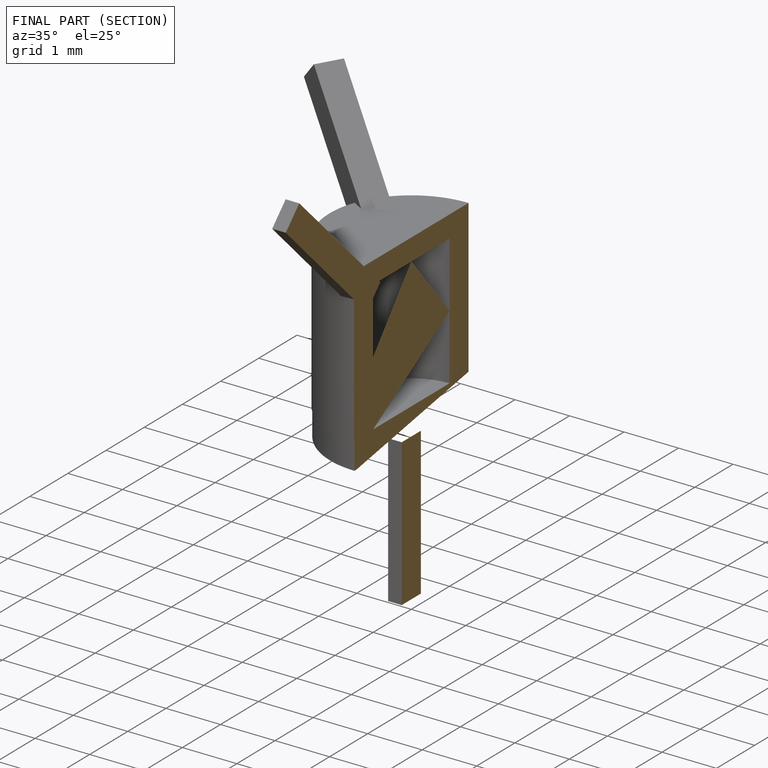
[diagram: finished part — half-section view (interior)]
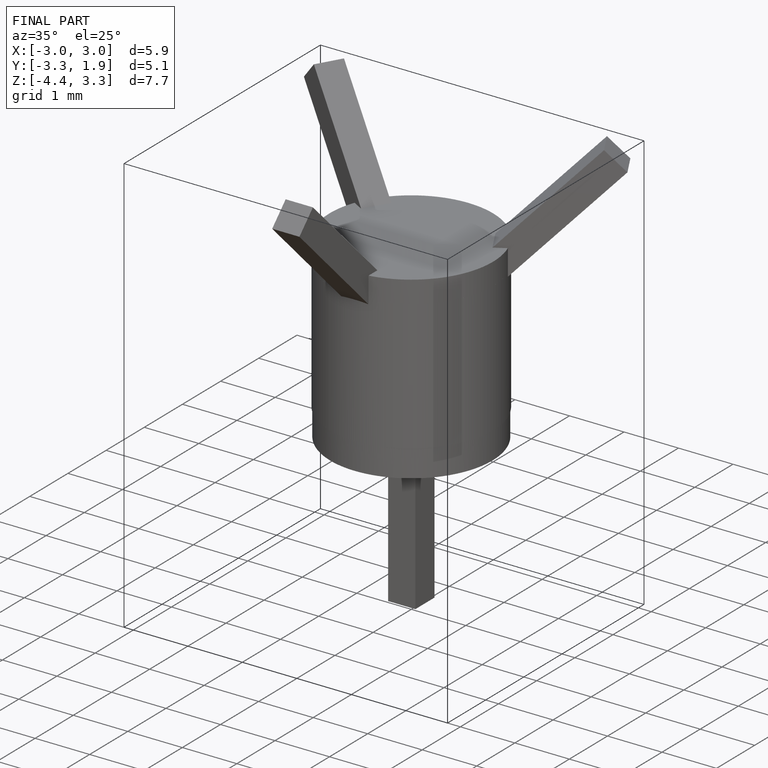
[diagram: finished part — iso view with bounding-box wireframe]
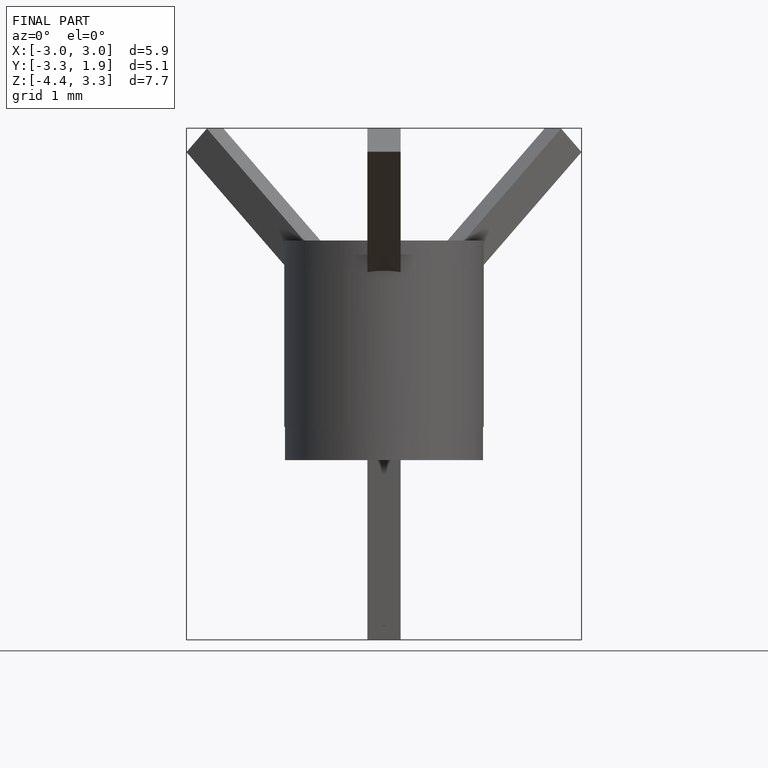
[diagram: finished part — front view with bounding-box wireframe]
